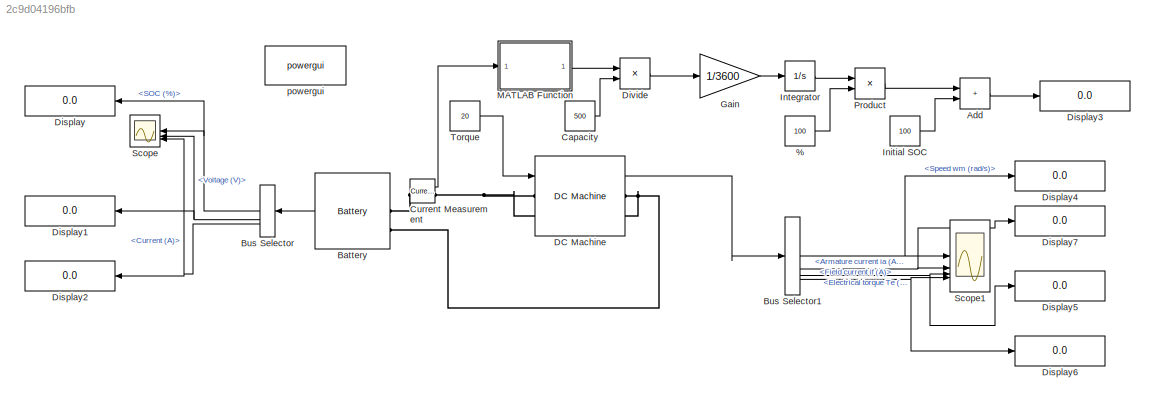
MODEL slx_2c9d04196bfb
KIND model
CONFIG AbsTol = auto
CONFIG EnableMultiTasking = off
CONFIG FixedStep = auto
CONFIG MaxStep = auto
CONFIG MinStep = auto
CONFIG RelTol = 1e-3
CONFIG SampleTimeConstraint = Unconstrained
CONFIG SolverName = VariableStepAuto
CONFIG StartTime = 0.0
CONFIG StopTime = 3600*3
BLOCK [Constant] %
  Value = 100
BLOCK [Sum] Add
  IconShape = rectangular
BLOCK [Reference] Battery  REF=spsBatteryLib/Battery
  LibrarySourceBlock = sps_lib/Sources/Battery
  SourceBlock = spsBatteryLib/Battery
  SourceType = Battery
BLOCK [BusSelector] Bus Selector
  OutputSignals = SOC (%),Voltage (V),Current (A)
BLOCK [BusSelector] Bus Selector1
  OutputSignals = Speed wm (rad/s),Armature current ia (A),Electrical torque Te (n m),Field current if (A)
BLOCK [Constant] Capacity
  Value = 500
BLOCK [Reference] Current Measurement  REF=spsCurrentMeasurementLib/Current Measurement
  LibrarySourceBlock = sps_lib/Sensors and Measurements/Current Measurement
  SourceBlock = spsCurrentMeasurementLib/Current Measurement
  SourceType = Current Measurement
  UserDataPersistent = on
BLOCK [Reference] DC Machine  REF=spsDCMachineLib/DC Machine
  LibrarySourceBlock = sps_lib/Electrical Machines/DC Machine
  SourceBlock = spsDCMachineLib/DC Machine
  SourceType = DC machine
BLOCK [Display] Display
  Decimation = 1
BLOCK [Display] Display1
  Decimation = 1
BLOCK [Display] Display2
  Decimation = 1
BLOCK [Display] Display3
  Decimation = 1
BLOCK [Display] Display4
  Decimation = 1
BLOCK [Display] Display5
  Decimation = 1
BLOCK [Display] Display6
  Decimation = 1
BLOCK [Display] Display7
  Decimation = 1
BLOCK [Product] Divide
  Inputs = */
BLOCK [Gain] Gain
  Gain = 1/3600
BLOCK [Constant] Initial SOC
  Value = 100
BLOCK [Integrator] Integrator
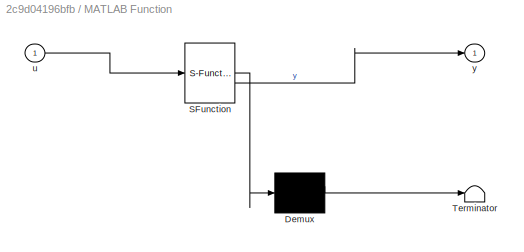
BLOCK [SubSystem] MATLAB Function
  ErrorFcn = Stateflow.Translate.translate
  PermitHierarchicalResolution = ExplicitOnly
  SFBlockType = MATLAB Function
  TreatAsAtomicUnit = on
BLOCK [Demux] MATLAB Function/ Demux 
  Outputs = 1
BLOCK [S-Function] MATLAB Function/ SFunction 
  EnableBusSupport = off
  FunctionName = sf_sfun
  PortCounts = [1 2]
  SFcnIsStateOwnerBlock = off
  SFunctionDeploymentMode = off
  Tag = Stateflow S-Function 2
BLOCK [Terminator] MATLAB Function/ Terminator 
BLOCK [Inport] MATLAB Function/u
BLOCK [Outport] MATLAB Function/y
BLOCK [Product] Product
BLOCK [Scope] Scope
  ActiveDisplayYMaximum = 112.5
  ActiveDisplayYMinimum = -12.499999999999996
  Floating = off
  GraphicalSettings = {"Style":{"BackgroundColor":[0.12941176470588237,0.12941176470588237,0.12941176470588237],"AxesColor":[0.07058823529411765,0.07058823529411765,0.07058823529411765],"LabelsColor":[0.8509803921568627,0.8509803921568627,0.8509803921568627],"PreserveColors":false,"Visible":[true,true,true],"LineStyle":["-","-","-"],"LineWidth":[1.5,1.5,1.5],"BarWidth":[0.9,0.9,0.9],"LineColor":["auto","auto","auto"],"...<+2203ch>
  MultipleDisplayCache = [{"MaxYLimMag":112.5,"MaxYLimReal":112.5,"MinYLimMag":0,"MinYLimReal":-12.499999999999996,"PlotAsMagnitudePhase":false,"ShowGrid":true,"ShowLegend":true,"Title":"%<SignalLabel>","YLabel":""}]
  NumInputPorts = 3
  ScopeFrameLocation = window
  ShowLegend = on
  WasSavedAsWebScope = on
  WindowPosition = [191.000000,162.000000,560.000000,420.000000,]
BLOCK [Scope] Scope1
  ActiveDisplayYMaximum = 763.56275400750565
  ActiveDisplayYMinimum = -5902.7302913957765
  DataLoggingVariableName = ScopeData1
  Floating = off
  GraphicalSettings = {"Style":{"BackgroundColor":[0.12941176470588237,0.12941176470588237,0.12941176470588237],"AxesColor":[0.07058823529411765,0.07058823529411765,0.07058823529411765],"LabelsColor":[0.8509803921568627,0.8509803921568627,0.8509803921568627],"PreserveColors":false,"Visible":[true,true,true,true],"LineStyle":["-","-","-","-"],"LineWidth":[1.5,1.5,1.5,1.5],"BarWidth":[0.9,0.9,0.9,0.9],"LineColor":["auto"...<+2471ch>
  MultipleDisplayCache = [{"MaxYLimMag":5902.7302913957765,"MaxYLimReal":763.56275400750565,"MinYLimMag":0,"MinYLimReal":-5902.7302913957765,"PlotAsMagnitudePhase":false,"ShowGrid":true,"ShowLegend":false,"Title":"%<SignalLabel>","YLabel":""}]
  NumInputPorts = 4
  ScopeFrameLocation = window
  WasSavedAsWebScope = on
  WindowPosition = [403.000000,174.000000,560.000000,420.000000,]
BLOCK [Constant] Torque
  Value = 20
BLOCK [Reference] powergui  REF=sps_lib/powergui
  LibrarySourceBlock = sps_lib/powergui
  Priority = 1
  SourceBlock = sps_lib/powergui
  SourceType = PSB option menu block
LINE %:1 -> Product:2
LINE Add:1 -> Display3:1
LINE Battery:1 -> Bus Selector:1
NET Bus Selector1:1 -> Display4:1, Scope1:1
NET Bus Selector1:2 -> Display7:1, Scope1:2
NET Bus Selector1:3 -> Display5:1, Scope1:3
NET Bus Selector1:4 -> Display6:1, Scope1:4
NET Bus Selector:1 -> Display:1, Scope:1
NET Bus Selector:2 -> Display1:1, Scope:2
NET Bus Selector:3 -> Display2:1, Scope:3
LINE Capacity:1 -> Divide:2
LINE Current Measurement:1 -> MATLAB Function:1
LINE DC Machine:1 -> Bus Selector1:1
LINE Divide:1 -> Gain:1
LINE Gain:1 -> Integrator:1
LINE Initial SOC:1 -> Add:2
LINE Integrator:1 -> Product:1
LINE MATLAB Function:1 -> Divide:1
LINE Product:1 -> Add:1
LINE Torque:1 -> DC Machine:1
PLINE Battery:LConn1 -- Current Measurement:LConn1
PNET net1: Battery:LConn2 -- DC Machine:RConn1 -- DC Machine:RConn2
PNET net2: Current Measurement:RConn1 -- DC Machine:LConn1 -- DC Machine:LConn2
note: NET lines group one-source signal fan-out (src -> all destinations, sorted); 1:1 wires keep LINE; PNET lines group multi-terminal physical nets as a canonical sorted terminal list (undirected conserving connections); 2-terminal nets keep the pairwise PLINE form
CHART MATLAB Function states=1 transitions=1
  STATE_LABEL 'eML_blk_kernel()'
  STATE_LABEL 'SCRIPT:\nfunction y = fcn(u)\n\ny = -u;\n'
CHART  states=0 transitions=0
